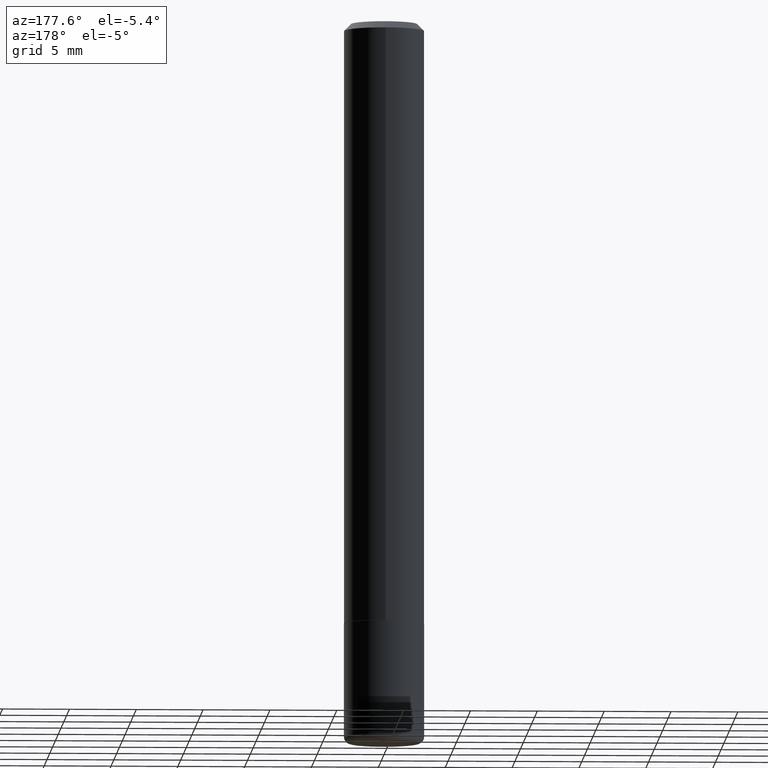
[diagram: clean part render]
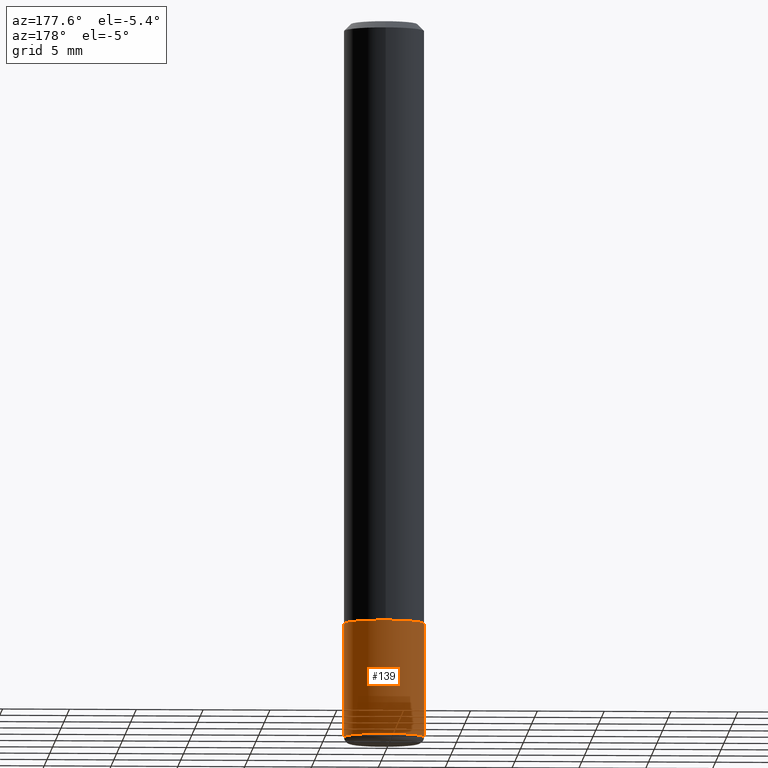
[diagram: same view with one face highlighted and labeled with its STEP entity id]
A machine part, auxiliary view. The second image highlights one B-rep face of the part: STEP entity #139.
In plain terms, the highlighted cylindrical surface (partial cylindrical patch) has radius 2.9997 mm, axis along (-0, 0, 1).
Its self-contained STEP definition (entity closure, byte-faithful):
#8 = CARTESIAN_POINT ( 'NONE',  ( -0.1181000000000000383, 8.391509709326785915E-16, -5.809262341591045886E-30 ) ) ;
#30 = VECTOR ( 'NONE', #385, 39.37007874015748143 ) ;
#40 = ORIENTED_EDGE ( 'NONE', *, *, #55, .F. ) ;
#55 = EDGE_CURVE ( 'NONE', #273, #76, #208, .T. ) ;
#57 = CARTESIAN_POINT ( 'NONE',  ( 5.150890946467754134E-29, -7.354107144005318601E-15, -2.106300000000000505 ) ) ;
#58 = DIRECTION ( 'NONE',  ( 1.000000000000000000, -6.982962677686262766E-15, 0.000000000000000000 ) ) ;
#67 = VERTEX_POINT ( 'NONE', #140 ) ;
#76 = VERTEX_POINT ( 'NONE', #405 ) ;
#88 = DIRECTION ( 'NONE',  ( -2.445468806185136597E-29, 3.491481338843145583E-15, 1.000000000000000000 ) ) ;
#91 = CARTESIAN_POINT ( 'NONE',  ( -0.1180999999999999828, -6.514956173072640404E-15, -2.106300000000000505 ) ) ;
#93 = CIRCLE ( 'NONE', #115, 0.1181000000000000383 ) ;
#112 = DIRECTION ( 'NONE',  ( 1.000000000000000000, -6.982962677686270655E-15, 0.000000000000000000 ) ) ;
#115 = AXIS2_PLACEMENT_3D ( 'NONE', #57, #88, #58 ) ;
#120 = VECTOR ( 'NONE', #284, 39.37007874015748143 ) ;
#138 = ORIENTED_EDGE ( 'NONE', *, *, #375, .F. ) ;
#139 = ADVANCED_FACE ( 'NONE', ( #412 ), #339, .T. ) ;
#140 = CARTESIAN_POINT ( 'NONE',  ( 0.1180999999999999828, -8.178795036240066864E-15, -2.106300000000000505 ) ) ;
#161 = CARTESIAN_POINT ( 'NONE',  ( 0.1181000000000000383, -8.246878922347483612E-16, 5.758764772215001842E-30 ) ) ;
#176 = CARTESIAN_POINT ( 'NONE',  ( 4.332637083918206427E-29, -6.185857488028401081E-15, -1.771700000000000053 ) ) ;
#180 = ORIENTED_EDGE ( 'NONE', *, *, #315, .T. ) ;
#191 = LINE ( 'NONE', #161, #30 ) ;
#195 = VERTEX_POINT ( 'NONE', #91 ) ;
#208 = CIRCLE ( 'NONE', #260, 0.1181000000000000383 ) ;
#246 = CARTESIAN_POINT ( 'NONE',  ( 0.1181000000000000383, -7.010545380263150133E-15, -1.771700000000000053 ) ) ;
#256 = EDGE_LOOP ( 'NONE', ( #180, #263, #40, #138 ) ) ;
#260 = AXIS2_PLACEMENT_3D ( 'NONE', #176, #369, #112 ) ;
#263 = ORIENTED_EDGE ( 'NONE', *, *, #415, .T. ) ;
#273 = VERTEX_POINT ( 'NONE', #246 ) ;
#277 = CARTESIAN_POINT ( 'NONE',  ( 0.000000000000000000, 0.000000000000000000, 0.000000000000000000 ) ) ;
#284 = DIRECTION ( 'NONE',  ( -2.445468806185136877E-29, 3.491481338843145188E-15, 1.000000000000000000 ) ) ;
#287 = AXIS2_PLACEMENT_3D ( 'NONE', #277, #337, #380 ) ;
#315 = EDGE_CURVE ( 'NONE', #67, #195, #93, .T. ) ;
#319 = LINE ( 'NONE', #8, #120 ) ;
#337 = DIRECTION ( 'NONE',  ( -2.445468806185136597E-29, 3.491481338843145583E-15, 1.000000000000000000 ) ) ;
#339 = CYLINDRICAL_SURFACE ( 'NONE', #287, 0.1181000000000000383 ) ;
#369 = DIRECTION ( 'NONE',  ( -2.445468806185136597E-29, 3.491481338843145583E-15, 1.000000000000000000 ) ) ;
#375 = EDGE_CURVE ( 'NONE', #67, #273, #191, .T. ) ;
#380 = DIRECTION ( 'NONE',  ( 1.000000000000000000, -6.982962677686266711E-15, 4.876176775795935793E-29 ) ) ;
#385 = DIRECTION ( 'NONE',  ( -2.445468806185136877E-29, 3.491481338843145188E-15, 1.000000000000000000 ) ) ;
#405 = CARTESIAN_POINT ( 'NONE',  ( -0.1181000000000000383, -5.930831345084180855E-15, -1.771700000000000053 ) ) ;
#412 = FACE_OUTER_BOUND ( 'NONE', #256, .T. ) ;
#415 = EDGE_CURVE ( 'NONE', #195, #76, #319, .T. ) ;